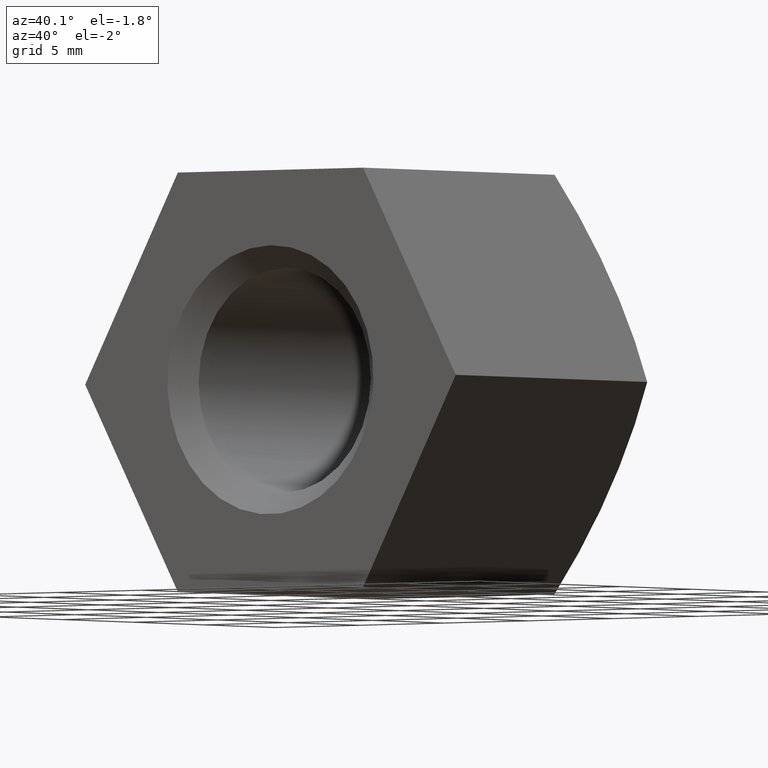
[diagram: clean part render]
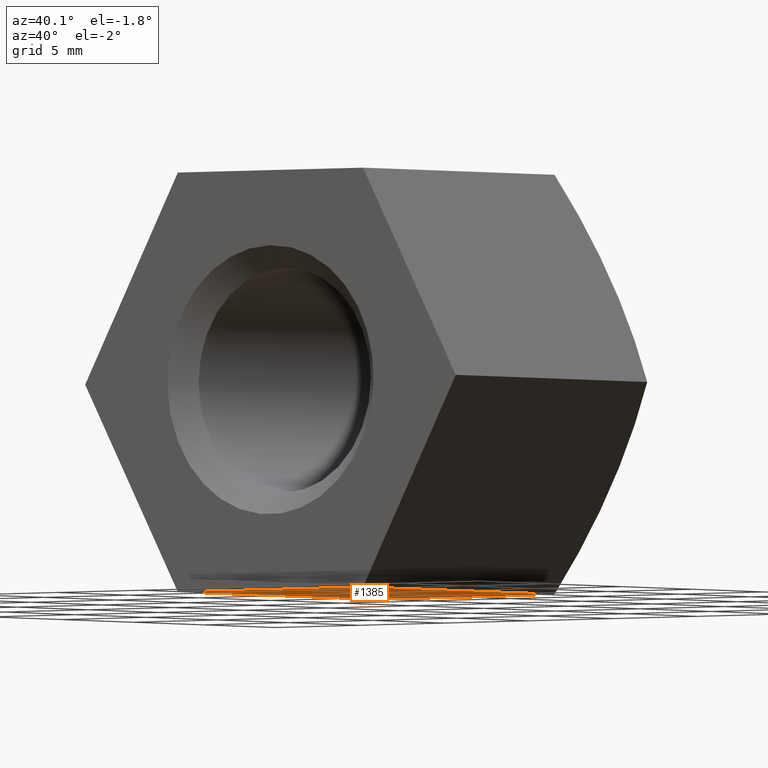
[diagram: same view with one face highlighted and labeled with its STEP entity id]
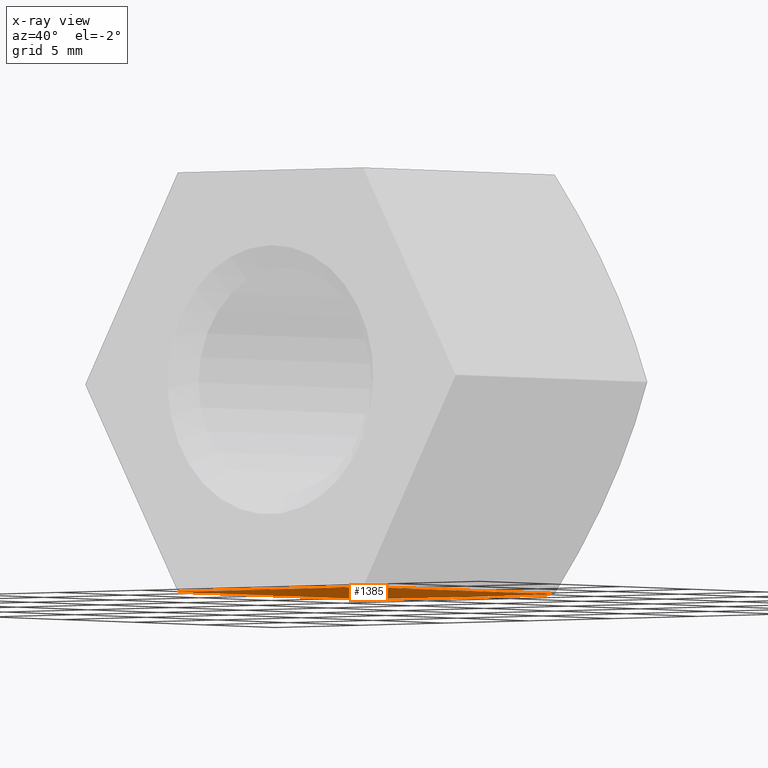
[diagram: x-ray of the same camera — body ghosted, the highlighted face saturated]
A machine part, auxiliary view. The second image highlights one B-rep face of the part: STEP entity #1385.
The next image is the same camera in x-ray: the body ghosted, the highlighted face saturated — about 0% of this face is hidden behind the body in this view.
In plain terms, the highlighted planar face has unit normal (-0, 0, 1).
Its self-contained STEP definition (entity closure, byte-faithful):
#1037 = DIRECTION ( 'NONE',  ( -1.000000000000000000, 0.000000000000000000, -1.581383788144378940E-16 ) ) ;
#1385 = ADVANCED_FACE ( 'NONE', ( #2732 ), #7162, .F. ) ;
#1505 = LINE ( 'NONE', #6161, #8302 ) ;
#1788 = CARTESIAN_POINT ( 'NONE',  ( -5.484827557301445999, 0.000000000000000000, -9.500000000000001776 ) ) ;
#2068 = CARTESIAN_POINT ( 'NONE',  ( 1.502314598737160017E-15, -9.000000000000001776, -9.500000000000000000 ) ) ;
#2419 = LINE ( 'NONE', #14267, #13221 ) ;
#2568 = EDGE_CURVE ( 'NONE', #8119, #11292, #2419, .T. ) ;
#2732 = FACE_OUTER_BOUND ( 'NONE', #9871, .T. ) ;
#3245 = CARTESIAN_POINT ( 'NONE',  ( 5.484827557301438006, 0.000000000000000000, -9.500000000000000000 ) ) ;
#3822 = AXIS2_PLACEMENT_3D ( 'NONE', #5986, #3897, #10607 ) ;
#3897 = DIRECTION ( 'NONE',  ( -1.581383788144378940E-16, 0.000000000000000000, 1.000000000000000000 ) ) ;
#3994 = EDGE_CURVE ( 'NONE', #11292, #7755, #12686, .T. ) ;
#4160 = DIRECTION ( 'NONE',  ( -0.000000000000000000, -1.000000000000000000, -0.000000000000000000 ) ) ;
#4508 = CARTESIAN_POINT ( 'NONE',  ( 5.484827557301442447, 13.46478726065899245, -9.499999999999998224 ) ) ;
#5026 = EDGE_CURVE ( 'NONE', #5627, #7755, #1505, .T. ) ;
#5243 = DIRECTION ( 'NONE',  ( 1.000000000000000000, 4.425953744786920170E-15, 1.500323303317600083E-16 ) ) ;
#5627 = VERTEX_POINT ( 'NONE', #12946 ) ;
#5986 = CARTESIAN_POINT ( 'NONE',  ( 5.484827557301438006, 16.00000000000000000, -9.500000000000000000 ) ) ;
#6161 = CARTESIAN_POINT ( 'NONE',  ( -5.484827557301445999, 16.00000000000000000, -9.500000000000001776 ) ) ;
#6346 = ORIENTED_EDGE ( 'NONE', *, *, #5026, .F. ) ;
#6757 = VECTOR ( 'NONE', #1037, 1000.000000000000000 ) ;
#7162 = PLANE ( 'NONE',  #3822 ) ;
#7755 = VERTEX_POINT ( 'NONE', #1788 ) ;
#8119 = VERTEX_POINT ( 'NONE', #4508 ) ;
#8302 = VECTOR ( 'NONE', #9322, 1000.000000000000000 ) ;
#8694 = DIRECTION ( 'NONE',  ( 1.581383788144378940E-16, -0.000000000000000000, -1.000000000000000000 ) ) ;
#8695 = CARTESIAN_POINT ( 'NONE',  ( 5.484827557301438006, 0.000000000000000000, -9.500000000000000000 ) ) ;
#8724 = AXIS2_PLACEMENT_3D ( 'NONE', #2068, #8694, #5243 ) ;
#9322 = DIRECTION ( 'NONE',  ( -0.000000000000000000, -1.000000000000000000, -0.000000000000000000 ) ) ;
#9658 = ORIENTED_EDGE ( 'NONE', *, *, #12684, .T. ) ;
#9871 = EDGE_LOOP ( 'NONE', ( #6346, #9658, #13717, #12934 ) ) ;
#10607 = DIRECTION ( 'NONE',  ( 1.000000000000000000, 0.000000000000000000, 1.581383788144378940E-16 ) ) ;
#11292 = VERTEX_POINT ( 'NONE', #8695 ) ;
#12684 = EDGE_CURVE ( 'NONE', #5627, #8119, #14010, .T. ) ;
#12686 = LINE ( 'NONE', #3245, #6757 ) ;
#12934 = ORIENTED_EDGE ( 'NONE', *, *, #3994, .T. ) ;
#12946 = CARTESIAN_POINT ( 'NONE',  ( -5.484827557301448664, 13.46478726065899245, -9.499999999999996447 ) ) ;
#13221 = VECTOR ( 'NONE', #4160, 1000.000000000000000 ) ;
#13717 = ORIENTED_EDGE ( 'NONE', *, *, #2568, .T. ) ;
#14010 = CIRCLE ( 'NONE', #8724, 23.12466215969435623 ) ;
#14267 = CARTESIAN_POINT ( 'NONE',  ( 5.484827557301438006, 16.00000000000000000, -9.500000000000000000 ) ) ;